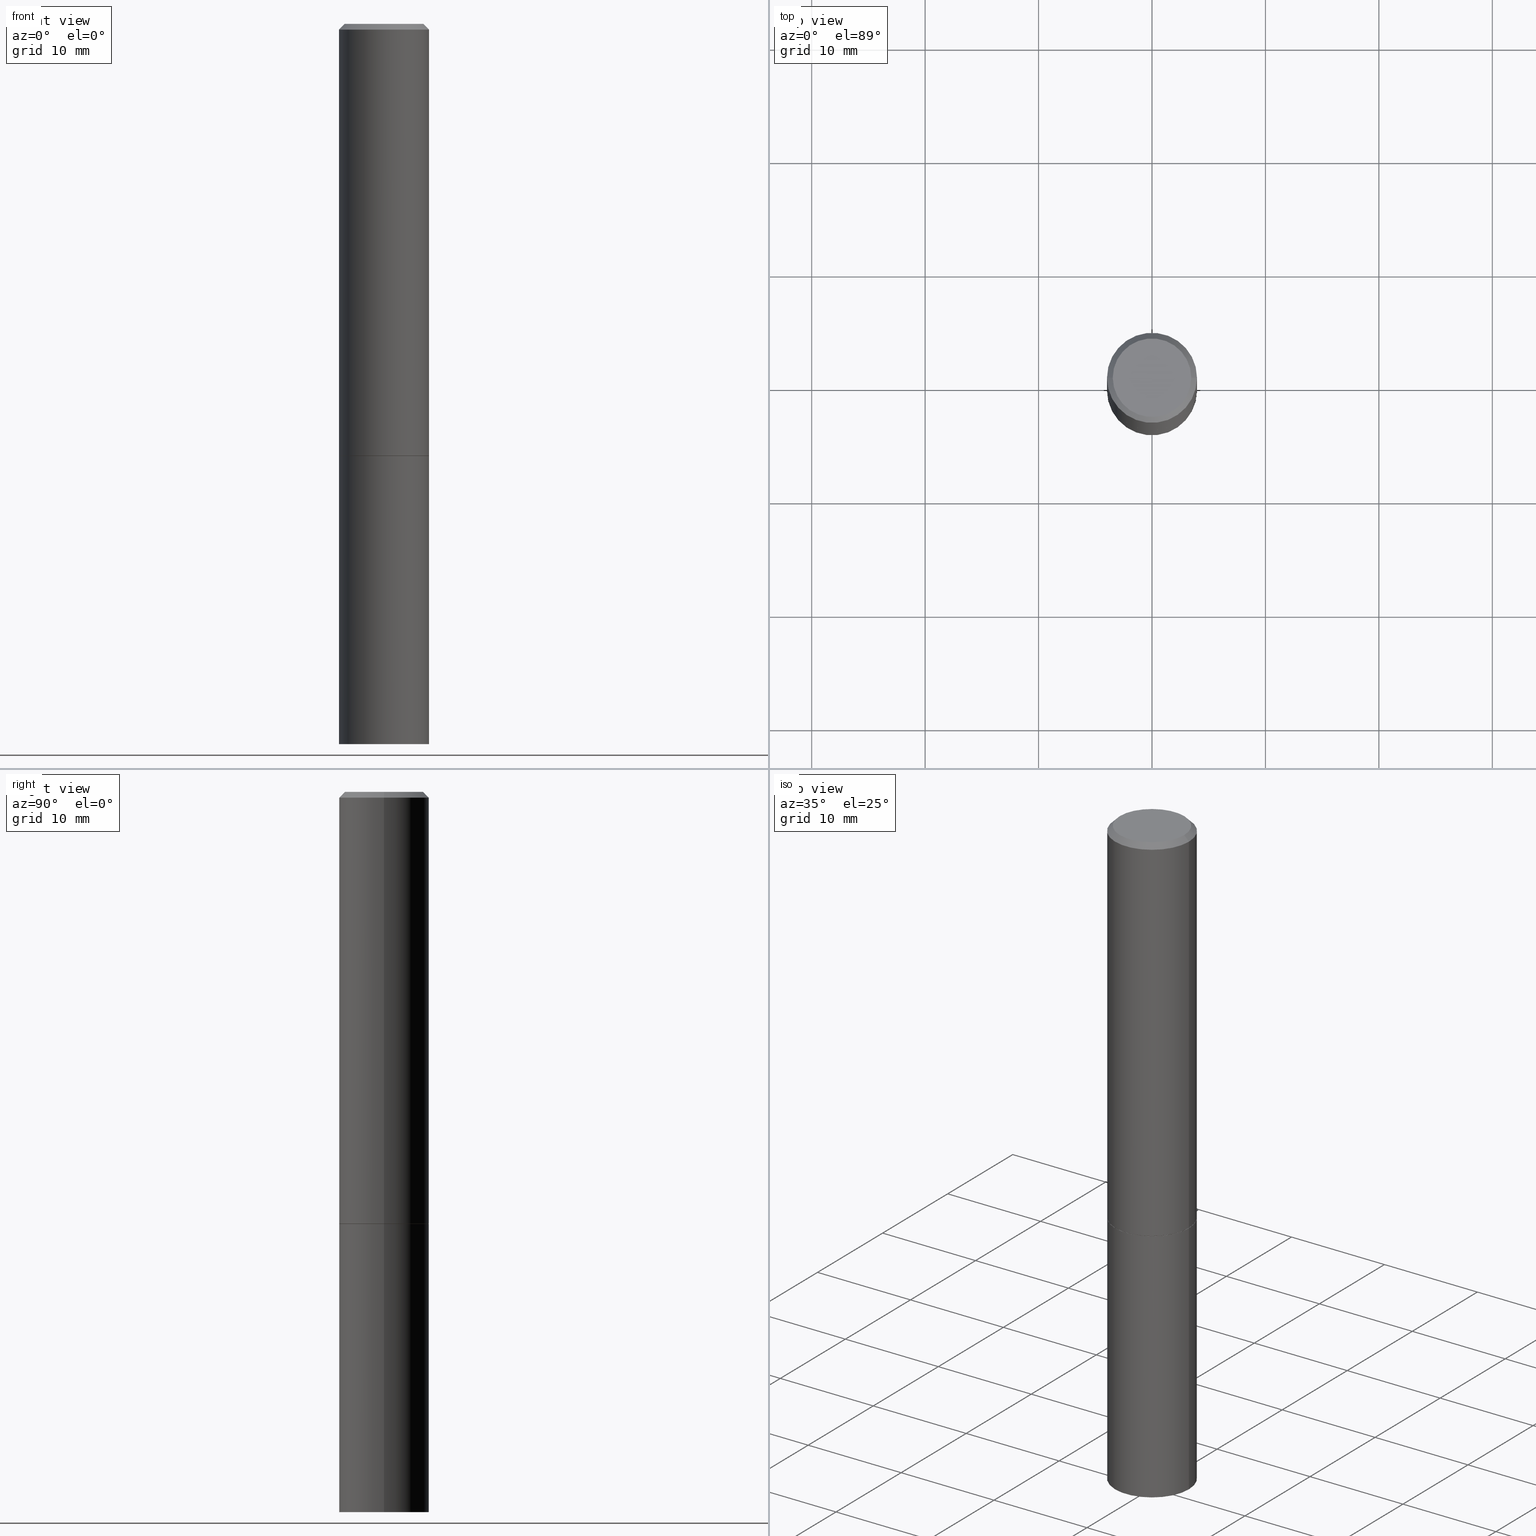
[diagram: canonical four-view strip — front | top / right | iso, engineering-drawing reading convention]
A machine part, canonical four-view strip (front | top / right | iso — engineering-drawing reading convention). The complete STEP part file that produces these views, byte-faithful:
ISO-10303-21;
HEADER;
FILE_DESCRIPTION (( 'STEP AP203' ),
    '1' );
FILE_NAME ('72972.STEP',
    '2024-02-29T05:55:33',
    ( '' ),
    ( '' ),
    'SwSTEP 2.0',
    'SolidWorks 2023',
    '' );
FILE_SCHEMA (( 'CONFIG_CONTROL_DESIGN' ));
ENDSEC;

DATA;
#1 = CARTESIAN_POINT ( 'NONE',  ( 4.890937612370281041E-31, -6.982962677686302702E-17, -0.02000000000000003511 ) ) ;
#2 = CYLINDRICAL_SURFACE ( 'NONE', #218, 0.1562499999999999445 ) ;
#3 = APPROVAL_STATUS ( 'not_yet_approved' ) ;
#4 = CARTESIAN_POINT ( 'NONE',  ( 3.668203209277704895E-29, -5.237222008264718177E-15, -1.500000000000000222 ) ) ;
#5 = CARTESIAN_POINT ( 'NONE',  ( 3.668203209277704895E-29, -5.237222008264718177E-15, -1.500000000000000222 ) ) ;
#6 = PRODUCT_DEFINITION_FORMATION_WITH_SPECIFIED_SOURCE ( 'ANY', '', #315, .NOT_KNOWN. ) ;
#7 = DIRECTION ( 'NONE',  ( -2.445468806185136597E-29, 3.491481338843145583E-15, 1.000000000000000000 ) ) ;
#8 = COORDINATED_UNIVERSAL_TIME_OFFSET ( 5, 0, .BEHIND. ) ;
#9 = CYLINDRICAL_SURFACE ( 'NONE', #215, 0.1562500000000000000 ) ;
#10 = ORIENTED_EDGE ( 'NONE', *, *, #223, .T. ) ;
#11 = PERSON_AND_ORGANIZATION ( #159, #130 ) ;
#12 = CIRCLE ( 'NONE', #102, 0.1362499999999998435 ) ;
#13 = APPROVAL_ROLE ( '' ) ;
#14 = APPLICATION_CONTEXT ( 'configuration controlled 3d designs of mechanical parts and assemblies' ) ;
#15 = DIRECTION ( 'NONE',  ( 2.445468806185136597E-29, -3.491481338843145583E-15, -1.000000000000000000 ) ) ;
#16 = ADVANCED_FACE ( 'NONE', ( #72 ), #362, .T. ) ;
#17 = CARTESIAN_POINT ( 'NONE',  ( 0.1562499999999999445, -1.091087918388478779E-15, 7.619026212181146173E-30 ) ) ;
#18 = EDGE_LOOP ( 'NONE', ( #10, #20 ) ) ;
#19 = DIRECTION ( 'NONE',  ( -2.445468806185136597E-29, 3.491481338843145583E-15, 1.000000000000000000 ) ) ;
#20 = ORIENTED_EDGE ( 'NONE', *, *, #305, .T. ) ;
#21 = CALENDAR_DATE ( 2024, 29, 2 ) ;
#22 = ORIENTED_EDGE ( 'NONE', *, *, #276, .F. ) ;
#23 = VERTEX_POINT ( 'NONE', #46 ) ;
#24 = ORIENTED_EDGE ( 'NONE', *, *, #31, .T. ) ;
#25 = PRODUCT_DEFINITION ( 'UNKNOWN', '', #6, #50 ) ;
#26 = CARTESIAN_POINT ( 'NONE',  ( 1.091087918388515658E-15, 0.1562499999999947820, -1.500000000000000666 ) ) ;
#27 = AXIS2_PLACEMENT_3D ( 'NONE', #1, #15, #309 ) ;
#28 = FACE_OUTER_BOUND ( 'NONE', #18, .T. ) ;
#29 = DIRECTION ( 'NONE',  ( 1.000000000000000000, -6.982962677686266711E-15, 4.876176775795936353E-29 ) ) ;
#30 = CC_DESIGN_PERSON_AND_ORGANIZATION_ASSIGNMENT ( #344, #89, ( #6 ) ) ;
#31 = EDGE_CURVE ( 'NONE', #280, #23, #163, .T. ) ;
#32 = CARTESIAN_POINT ( 'NONE',  ( 3.665757740471519853E-29, -5.233730526925875958E-15, -1.499000000000000110 ) ) ;
#33 = DIMENSIONAL_EXPONENTS ( 1.000000000000000000, 0.000000000000000000, 0.000000000000000000, 0.000000000000000000, 0.000000000000000000, 0.000000000000000000, 0.000000000000000000 ) ;
#34 = AXIS2_PLACEMENT_3D ( 'NONE', #228, #336, #201 ) ;
#35 = PERSON_AND_ORGANIZATION ( #159, #130 ) ;
#36 = ADVANCED_FACE ( 'NONE', ( #103 ), #335, .T. ) ;
#37 = LOCAL_TIME ( 0, 55, 33.00000000000000000, #182 ) ;
#38 = FACE_OUTER_BOUND ( 'NONE', #225, .T. ) ;
#39 = EDGE_CURVE ( 'NONE', #119, #55, #79, .T. ) ;
#40 = EDGE_LOOP ( 'NONE', ( #222, #170, #257, #219 ) ) ;
#41 = APPROVAL_DATE_TIME ( #156, #311 ) ;
#42 = CARTESIAN_POINT ( 'NONE',  ( 3.668203209277704895E-29, -5.237222008264718177E-15, -1.500000000000000222 ) ) ;
#43 = LOCAL_TIME ( 0, 55, 33.00000000000000000, #172 ) ;
#44 = CARTESIAN_POINT ( 'NONE',  ( 3.668203209277704895E-29, -5.237222008264718177E-15, -1.500000000000000222 ) ) ;
#45 = FACE_OUTER_BOUND ( 'NONE', #162, .T. ) ;
#46 = CARTESIAN_POINT ( 'NONE',  ( -0.1562500000000000000, -5.872739653061135414E-15, -1.500000000000000222 ) ) ;
#47 = ORIENTED_EDGE ( 'NONE', *, *, #220, .F. ) ;
#48 = LOCAL_TIME ( 0, 55, 33.00000000000000000, #87 ) ;
#49 = DIRECTION ( 'NONE',  ( -2.445468806185136877E-29, 3.491481338843145188E-15, 1.000000000000000000 ) ) ;
#50 = DESIGN_CONTEXT ( 'detailed design', #66, 'design' ) ;
#51 = CC_DESIGN_PERSON_AND_ORGANIZATION_ASSIGNMENT ( #61, #273, ( #272 ) ) ;
#52 = DIRECTION ( 'NONE',  ( -2.445468806185136597E-29, 3.491481338843145583E-15, 1.000000000000000000 ) ) ;
#53 = EDGE_CURVE ( 'NONE', #119, #280, #64, .T. ) ;
#54 = SECURITY_CLASSIFICATION_LEVEL ( 'unclassified' ) ;
#55 = VERTEX_POINT ( 'NONE', #106 ) ;
#56 = FACE_OUTER_BOUND ( 'NONE', #248, .T. ) ;
#57 = LOCAL_TIME ( 0, 55, 33.00000000000000000, #8 ) ;
#58 = AXIS2_PLACEMENT_3D ( 'NONE', #73, #365, #75 ) ;
#59 = CARTESIAN_POINT ( 'NONE',  ( 4.890937612370281041E-31, -6.982962677686302702E-17, -0.02000000000000003511 ) ) ;
#60 = CIRCLE ( 'NONE', #217, 0.1562500000000000000 ) ;
#61 = PERSON_AND_ORGANIZATION ( #159, #130 ) ;
#62 = VECTOR ( 'NONE', #173, 39.37007874015748143 ) ;
#63 = PERSON_AND_ORGANIZATION ( #159, #130 ) ;
#64 = CIRCLE ( 'NONE', #346, 0.1562500000000000000 ) ;
#65 = DIRECTION ( 'NONE',  ( 1.000000000000000000, 0.000000000000000000, 0.000000000000000000 ) ) ;
#66 = APPLICATION_CONTEXT ( 'configuration controlled 3d designs of mechanical parts and assemblies' ) ;
#67 = EDGE_LOOP ( 'NONE', ( #99, #333, #120, #92 ) ) ;
#68 = VERTEX_POINT ( 'NONE', #230 ) ;
#69 = DIRECTION ( 'NONE',  ( -2.445468806185136597E-29, 3.491481338843145583E-15, 1.000000000000000000 ) ) ;
#70 = ORIENTED_EDGE ( 'NONE', *, *, #179, .F. ) ;
#71 =( GEOMETRIC_REPRESENTATION_CONTEXT ( 3 ) GLOBAL_UNCERTAINTY_ASSIGNED_CONTEXT ( ( #80 ) ) GLOBAL_UNIT_ASSIGNED_CONTEXT ( ( #122, #303, #151 ) ) REPRESENTATION_CONTEXT ( 'NONE', 'WORKASPACE' ) );
#72 = FACE_OUTER_BOUND ( 'NONE', #101, .T. ) ;
#73 = CARTESIAN_POINT ( 'NONE',  ( 1.091087918388540310E-15, 0.1562499999999912570, -2.500000000000000444 ) ) ;
#74 = DIRECTION ( 'NONE',  ( -0.7071067811865232589, 7.493145998870265808E-15, 0.7071067811865715536 ) ) ;
#75 = DIRECTION ( 'NONE',  ( -1.000000000000000000, 6.982962677686265922E-15, -4.876176775795935793E-29 ) ) ;
#76 = AXIS2_PLACEMENT_3D ( 'NONE', #32, #7, #114 ) ;
#77 = DIRECTION ( 'NONE',  ( 1.000000000000000000, -6.982962677686268288E-15, 0.000000000000000000 ) ) ;
#78 = ADVANCED_FACE ( 'NONE', ( #136 ), #200, .T. ) ;
#79 = LINE ( 'NONE', #198, #85 ) ;
#80 = UNCERTAINTY_MEASURE_WITH_UNIT (LENGTH_MEASURE( 1.000000000000000082E-05 ), #122, 'distance_accuracy_value', 'NONE');
#81 = DATE_AND_TIME ( #211, #48 ) ;
#82 = DIRECTION ( 'NONE',  ( 0.7071067811865232589, -2.468850131082003836E-15, 0.7071067811865715536 ) ) ;
#83 = ORIENTED_EDGE ( 'NONE', *, *, #147, .F. ) ;
#84 = DIRECTION ( 'NONE',  ( 1.000000000000000000, -6.982962677686265133E-15, 0.000000000000000000 ) ) ;
#85 = VECTOR ( 'NONE', #49, 39.37007874015748143 ) ;
#86 = EDGE_CURVE ( 'NONE', #280, #119, #138, .T. ) ;
#87 = COORDINATED_UNIVERSAL_TIME_OFFSET ( 5, 0, .BEHIND. ) ;
#88 = DIRECTION ( 'NONE',  ( -2.445468806185136597E-29, 3.491481338843145583E-15, 1.000000000000000000 ) ) ;
#89 = PERSON_AND_ORGANIZATION_ROLE ( 'creator' ) ;
#90 = MANIFOLD_SOLID_BREP ( 'Body-Move/Copy2[2]', #231 ) ;
#91 = MANIFOLD_SOLID_BREP ( 'Body-Move/Copy2[1]', #351 ) ;
#92 = ORIENTED_EDGE ( 'NONE', *, *, #264, .F. ) ;
#93 = ORIENTED_EDGE ( 'NONE', *, *, #174, .F. ) ;
#94 = EDGE_CURVE ( 'NONE', #188, #196, #289, .T. ) ;
#95 = CC_DESIGN_SECURITY_CLASSIFICATION ( #272, ( #6 ) ) ;
#96 = AXIS2_PLACEMENT_3D ( 'NONE', #316, #52, #292 ) ;
#97 = ORIENTED_EDGE ( 'NONE', *, *, #94, .T. ) ;
#98 = FACE_OUTER_BOUND ( 'NONE', #204, .T. ) ;
#99 = ORIENTED_EDGE ( 'NONE', *, *, #205, .T. ) ;
#100 = CARTESIAN_POINT ( 'NONE',  ( -0.1562499999999998335, 1.021258291611615086E-15, -0.02000000000000003511 ) ) ;
#101 = EDGE_LOOP ( 'NONE', ( #22, #306, #190, #184 ) ) ;
#102 = AXIS2_PLACEMENT_3D ( 'NONE', #279, #229, #239 ) ;
#103 = FACE_OUTER_BOUND ( 'NONE', #243, .T. ) ;
#104 = LINE ( 'NONE', #125, #209 ) ;
#105 = DIRECTION ( 'NONE',  ( 1.000000000000000000, -6.982962677686266711E-15, 4.876176775795935232E-29 ) ) ;
#106 = CARTESIAN_POINT ( 'NONE',  ( 0.1562500000000000000, -6.328309926653198139E-15, -1.500000000000000222 ) ) ;
#107 = EDGE_LOOP ( 'NONE', ( #246, #134, #194, #327 ) ) ;
#108 = DIRECTION ( 'NONE',  ( -2.445468806185136597E-29, 3.491481338843145583E-15, 1.000000000000000000 ) ) ;
#109 = CARTESIAN_POINT ( 'NONE',  ( 0.1562500000000000000, -9.819791265496344905E-15, -2.500000000000000000 ) ) ;
#110 = DIRECTION ( 'NONE',  ( -1.000000000000000000, 6.982962677686267499E-15, 0.000000000000000000 ) ) ;
#111 = ADVANCED_FACE ( 'NONE', ( #38 ), #175, .T. ) ;
#112 = APPROVAL_ROLE ( '' ) ;
#113 = APPROVAL_DATE_TIME ( #81, #171 ) ;
#114 = DIRECTION ( 'NONE',  ( 1.000000000000000000, -6.982962677686269077E-15, 0.000000000000000000 ) ) ;
#115 = EDGE_CURVE ( 'NONE', #196, #188, #277, .T. ) ;
#116 = DIRECTION ( 'NONE',  ( -2.445468806185136597E-29, 3.491481338843145583E-15, 1.000000000000000000 ) ) ;
#117 = CALENDAR_DATE ( 2024, 29, 2 ) ;
#118 = CONICAL_SURFACE ( 'NONE', #332, 0.1552499999999999991, 0.7853981633974141952 ) ;
#119 = VERTEX_POINT ( 'NONE', #109 ) ;
#120 = ORIENTED_EDGE ( 'NONE', *, *, #348, .F. ) ;
#121 = DATE_AND_TIME ( #117, #37 ) ;
#122 =( CONVERSION_BASED_UNIT ( 'INCH', #345 ) LENGTH_UNIT ( ) NAMED_UNIT ( #33 ) );
#123 = EDGE_LOOP ( 'NONE', ( #252, #24, #347, #129 ) ) ;
#124 = FACE_OUTER_BOUND ( 'NONE', #123, .T. ) ;
#125 = CARTESIAN_POINT ( 'NONE',  ( -0.1552499999999999991, -4.134104410997162644E-15, -1.500000000000000222 ) ) ;
#126 = DIRECTION ( 'NONE',  ( -2.445468806185136597E-29, 3.491481338843145583E-15, 1.000000000000000000 ) ) ;
#127 = DIRECTION ( 'NONE',  ( 1.000000000000000000, -6.982962677686269077E-15, 0.000000000000000000 ) ) ;
#128 = PERSON_AND_ORGANIZATION ( #159, #130 ) ;
#129 = ORIENTED_EDGE ( 'NONE', *, *, #39, .F. ) ;
#130 = ORGANIZATION ( 'UNSPECIFIED', 'UNSPECIFIED', '' ) ;
#131 = CIRCLE ( 'NONE', #187, 0.1552499999999999991 ) ;
#132 = APPROVAL ( #250, 'UNSPECIFIED' ) ;
#133 = ORIENTED_EDGE ( 'NONE', *, *, #115, .T. ) ;
#134 = ORIENTED_EDGE ( 'NONE', *, *, #86, .T. ) ;
#135 = FACE_OUTER_BOUND ( 'NONE', #40, .T. ) ;
#136 = FACE_OUTER_BOUND ( 'NONE', #67, .T. ) ;
#137 = DATE_TIME_ROLE ( 'classification_date' ) ;
#138 = CIRCLE ( 'NONE', #221, 0.1562500000000000000 ) ;
#139 = DIRECTION ( 'NONE',  ( 2.438088387897960049E-29, -3.491481338843145188E-15, -1.000000000000000000 ) ) ;
#140 = CIRCLE ( 'NONE', #297, 0.1562500000000000000 ) ;
#141 = CARTESIAN_POINT ( 'NONE',  ( -0.1562500000000000000, -1.541557052226212102E-15, -1.499000000000000110 ) ) ;
#142 = ADVANCED_FACE ( 'NONE', ( #45 ), #118, .T. ) ;
#143 = PLANE ( 'NONE',  #181 ) ;
#144 = CARTESIAN_POINT ( 'NONE',  ( 0.000000000000000000, 0.000000000000000000, 0.000000000000000000 ) ) ;
#145 = APPROVAL_PERSON_ORGANIZATION ( #11, #132, #13 ) ;
#146 = CARTESIAN_POINT ( 'NONE',  ( -1.043851414335219820E-46, 1.490343170380447200E-32, 4.268512490100411279E-18 ) ) ;
#147 = EDGE_CURVE ( 'NONE', #68, #188, #343, .T. ) ;
#148 = APPROVAL_STATUS ( 'not_yet_approved' ) ;
#149 = APPROVAL_DATE_TIME ( #121, #132 ) ;
#150 = PRODUCT_RELATED_PRODUCT_CATEGORY ( 'detail', '', ( #315 ) ) ;
#151 =( NAMED_UNIT ( * ) SI_UNIT ( $, .STERADIAN. ) SOLID_ANGLE_UNIT ( ) );
#152 = AXIS2_PLACEMENT_3D ( 'NONE', #323, #153, #258 ) ;
#153 = DIRECTION ( 'NONE',  ( -2.445468806185136597E-29, 3.491481338843145583E-15, 1.000000000000000000 ) ) ;
#154 = MECHANICAL_CONTEXT ( 'NONE', #14, 'mechanical' ) ;
#155 = CARTESIAN_POINT ( 'NONE',  ( 3.668203209277704895E-29, -5.237222008264718177E-15, -1.500000000000000222 ) ) ;
#156 = DATE_AND_TIME ( #330, #57 ) ;
#157 = EDGE_LOOP ( 'NONE', ( #260, #70 ) ) ;
#158 = DIRECTION ( 'NONE',  ( 1.000000000000000000, -6.982962677686268288E-15, 0.000000000000000000 ) ) ;
#159 = PERSON ( 'UNSPECIFIED', 'UNSPECIFIED', 'UNSPECIFIED', ('UNSPECIFIED'), ('UNSPECIFIED'), ('UNSPECIFIED') ) ;
#160 = VECTOR ( 'NONE', #361, 39.37007874015748143 ) ;
#161 = CC_DESIGN_PERSON_AND_ORGANIZATION_ASSIGNMENT ( #63, #301, ( #315 ) ) ;
#162 = EDGE_LOOP ( 'NONE', ( #328, #337, #261, #308 ) ) ;
#163 = LINE ( 'NONE', #287, #160 ) ;
#164 = EDGE_CURVE ( 'NONE', #352, #68, #274, .T. ) ;
#165 = VERTEX_POINT ( 'NONE', #180 ) ;
#166 = AXIS2_PLACEMENT_3D ( 'NONE', #349, #216, #65 ) ;
#167 = CARTESIAN_POINT ( 'NONE',  ( 6.113672015462842613E-29, -8.728703347107864943E-15, -2.500000000000000000 ) ) ;
#168 = DIRECTION ( 'NONE',  ( 1.000000000000000000, -6.982962677686268288E-15, 0.000000000000000000 ) ) ;
#169 = CARTESIAN_POINT ( 'NONE',  ( 3.665757740471519853E-29, -5.233730526925875958E-15, -1.499000000000000110 ) ) ;
#170 = ORIENTED_EDGE ( 'NONE', *, *, #276, .T. ) ;
#171 = APPROVAL ( #3, 'UNSPECIFIED' ) ;
#172 = COORDINATED_UNIVERSAL_TIME_OFFSET ( 5, 0, .BEHIND. ) ;
#173 = DIRECTION ( 'NONE',  ( -2.445468806185136877E-29, 3.491481338843145188E-15, 1.000000000000000000 ) ) ;
#174 = EDGE_CURVE ( 'NONE', #68, #352, #12, .T. ) ;
#175 = CONICAL_SURFACE ( 'NONE', #27, 0.1562499999999998335, 0.7853981633974471688 ) ;
#176 = PERSON_AND_ORGANIZATION ( #159, #130 ) ;
#177 = FACE_OUTER_BOUND ( 'NONE', #107, .T. ) ;
#178 = DIRECTION ( 'NONE',  ( -2.438088387897960049E-29, 3.491481338843145188E-15, 1.000000000000000000 ) ) ;
#179 = EDGE_CURVE ( 'NONE', #165, #226, #360, .T. ) ;
#180 = CARTESIAN_POINT ( 'NONE',  ( -0.1552499999999999991, -4.128805956648940242E-15, -1.500000000000000222 ) ) ;
#181 = AXIS2_PLACEMENT_3D ( 'NONE', #4, #178, #300 ) ;
#182 = COORDINATED_UNIVERSAL_TIME_OFFSET ( 5, 0, .BEHIND. ) ;
#183 = APPLICATION_PROTOCOL_DEFINITION ( 'international standard', 'config_control_design', 1994, #66 ) ;
#184 = ORIENTED_EDGE ( 'NONE', *, *, #94, .F. ) ;
#185 = EDGE_CURVE ( 'NONE', #165, #314, #104, .T. ) ;
#186 = DIRECTION ( 'NONE',  ( 1.000000000000000000, -6.982962677686266711E-15, 4.876176775795936353E-29 ) ) ;
#187 = AXIS2_PLACEMENT_3D ( 'NONE', #42, #19, #158 ) ;
#188 = VERTEX_POINT ( 'NONE', #100 ) ;
#189 = DIRECTION ( 'NONE',  ( -2.445468806185136597E-29, 3.491481338843145583E-15, 1.000000000000000000 ) ) ;
#190 = ORIENTED_EDGE ( 'NONE', *, *, #212, .T. ) ;
#191 = ADVANCED_FACE ( 'NONE', ( #98 ), #286, .F. ) ;
#192 = DIRECTION ( 'NONE',  ( 0.7071067811865466846, -7.319954787623252890E-15, -0.7071067811865483499 ) ) ;
#193 = AXIS2_PLACEMENT_3D ( 'NONE', #236, #339, #29 ) ;
#194 = ORIENTED_EDGE ( 'NONE', *, *, #39, .T. ) ;
#195 = PERSON_AND_ORGANIZATION_ROLE ( 'creator' ) ;
#196 = VERTEX_POINT ( 'NONE', #281 ) ;
#197 = ORIENTED_EDGE ( 'NONE', *, *, #220, .T. ) ;
#198 = CARTESIAN_POINT ( 'NONE',  ( 0.1562500000000000000, -1.091087918388479174E-15, 7.619026212181150377E-30 ) ) ;
#199 = LOCAL_TIME ( 0, 55, 33.00000000000000000, #255 ) ;
#200 = CONICAL_SURFACE ( 'NONE', #96, 0.1552499999999999991, 0.7853981633974141952 ) ;
#201 = DIRECTION ( 'NONE',  ( -1.000000000000000000, 6.982962677686265922E-15, -4.876176775795935793E-29 ) ) ;
#202 = DIRECTION ( 'NONE',  ( 1.000000000000000000, -6.982962677686269077E-15, 0.000000000000000000 ) ) ;
#203 = LINE ( 'NONE', #317, #62 ) ;
#204 = EDGE_LOOP ( 'NONE', ( #350, #290 ) ) ;
#205 = EDGE_CURVE ( 'NONE', #226, #165, #131, .T. ) ;
#206 = AXIS2_PLACEMENT_3D ( 'NONE', #338, #108, #207 ) ;
#207 = DIRECTION ( 'NONE',  ( 1.000000000000000000, -6.982962677686269077E-15, 0.000000000000000000 ) ) ;
#208 = APPROVAL_PERSON_ORGANIZATION ( #35, #311, #275 ) ;
#209 = VECTOR ( 'NONE', #74, 39.37007874015748854 ) ;
#210 = CARTESIAN_POINT ( 'NONE',  ( 0.1552499999999999991, -6.321326963975512125E-15, -1.500000000000000222 ) ) ;
#211 = CALENDAR_DATE ( 2024, 29, 2 ) ;
#212 = EDGE_CURVE ( 'NONE', #310, #196, #253, .T. ) ;
#213 = CALENDAR_DATE ( 2024, 29, 2 ) ;
#214 =( LENGTH_UNIT ( ) NAMED_UNIT ( * ) SI_UNIT ( $, .METRE. ) );
#215 = AXIS2_PLACEMENT_3D ( 'NONE', #244, #116, #186 ) ;
#216 = DIRECTION ( 'NONE',  ( 0.000000000000000000, 0.000000000000000000, 1.000000000000000000 ) ) ;
#217 = AXIS2_PLACEMENT_3D ( 'NONE', #169, #238, #364 ) ;
#218 = AXIS2_PLACEMENT_3D ( 'NONE', #144, #88, #232 ) ;
#219 = ORIENTED_EDGE ( 'NONE', *, *, #212, .F. ) ;
#220 = EDGE_CURVE ( 'NONE', #352, #196, #224, .T. ) ;
#221 = AXIS2_PLACEMENT_3D ( 'NONE', #266, #318, #127 ) ;
#222 = ORIENTED_EDGE ( 'NONE', *, *, #348, .T. ) ;
#223 = EDGE_CURVE ( 'NONE', #55, #23, #140, .T. ) ;
#224 = LINE ( 'NONE', #329, #251 ) ;
#225 = EDGE_LOOP ( 'NONE', ( #47, #93, #325, #97 ) ) ;
#226 = VERTEX_POINT ( 'NONE', #265 ) ;
#227 = ORIENTED_EDGE ( 'NONE', *, *, #53, .F. ) ;
#228 = CARTESIAN_POINT ( 'NONE',  ( 9.514286648347525771E-16, 0.1362499999999998435, -4.735800761723278502E-16 ) ) ;
#229 = DIRECTION ( 'NONE',  ( -2.445468806185136597E-29, 3.491481338843145583E-15, 1.000000000000000000 ) ) ;
#230 = CARTESIAN_POINT ( 'NONE',  ( -0.1362499999999998435, 9.863434782231838318E-16, 4.268512490093635087E-18 ) ) ;
#231 = CLOSED_SHELL ( 'NONE', ( #78, #233, #320, #111, #16, #142, #326, #191 ) ) ;
#232 = DIRECTION ( 'NONE',  ( 1.000000000000000000, -6.982962677686266711E-15, 4.876176775795935232E-29 ) ) ;
#233 = ADVANCED_FACE ( 'NONE', ( #135 ), #2, .T. ) ;
#234 = DIRECTION ( 'NONE',  ( -2.445468806185136597E-29, 3.491481338843145583E-15, 1.000000000000000000 ) ) ;
#235 = DIRECTION ( 'NONE',  ( -2.445468806185136597E-29, 3.491481338843145583E-15, 1.000000000000000000 ) ) ;
#236 = CARTESIAN_POINT ( 'NONE',  ( 0.000000000000000000, 0.000000000000000000, 0.000000000000000000 ) ) ;
#237 = VECTOR ( 'NONE', #355, 39.37007874015748143 ) ;
#238 = DIRECTION ( 'NONE',  ( -2.445468806185136597E-29, 3.491481338843145583E-15, 1.000000000000000000 ) ) ;
#239 = DIRECTION ( 'NONE',  ( 1.000000000000000000, -6.982962677686266711E-15, 4.876388394912424373E-29 ) ) ;
#240 = CARTESIAN_POINT ( 'NONE',  ( 0.1362499999999998435, -1.038262645562516941E-15, 4.268512490107368508E-18 ) ) ;
#241 = PRODUCT_DEFINITION_SHAPE ( 'NONE', 'NONE',  #25 ) ;
#242 = APPROVAL_PERSON_ORGANIZATION ( #176, #171, #112 ) ;
#243 = EDGE_LOOP ( 'NONE', ( #227, #363 ) ) ;
#244 = CARTESIAN_POINT ( 'NONE',  ( 0.000000000000000000, 0.000000000000000000, 0.000000000000000000 ) ) ;
#245 = ADVANCED_BREP_SHAPE_REPRESENTATION ( '72972', ( #91, #90, #166 ), #71 ) ;
#246 = ORIENTED_EDGE ( 'NONE', *, *, #31, .F. ) ;
#247 = SHAPE_DEFINITION_REPRESENTATION ( #241, #245 ) ;
#248 = EDGE_LOOP ( 'NONE', ( #334, #197, #133, #83 ) ) ;
#249 = EDGE_CURVE ( 'NONE', #314, #310, #60, .T. ) ;
#250 = APPROVAL_STATUS ( 'not_yet_approved' ) ;
#251 = VECTOR ( 'NONE', #192, 39.37007874015748143 ) ;
#252 = ORIENTED_EDGE ( 'NONE', *, *, #53, .T. ) ;
#253 = LINE ( 'NONE', #17, #237 ) ;
#254 = CARTESIAN_POINT ( 'NONE',  ( 4.890937612370281041E-31, -6.982962677686302702E-17, -0.02000000000000003511 ) ) ;
#255 = COORDINATED_UNIVERSAL_TIME_OFFSET ( 5, 0, .BEHIND. ) ;
#256 = AXIS2_PLACEMENT_3D ( 'NONE', #359, #234, #105 ) ;
#257 = ORIENTED_EDGE ( 'NONE', *, *, #115, .F. ) ;
#258 = DIRECTION ( 'NONE',  ( 1.000000000000000000, -6.982962677686265133E-15, 0.000000000000000000 ) ) ;
#259 = DATE_AND_TIME ( #21, #199 ) ;
#260 = ORIENTED_EDGE ( 'NONE', *, *, #205, .F. ) ;
#261 = ORIENTED_EDGE ( 'NONE', *, *, #264, .T. ) ;
#262 = CC_DESIGN_PERSON_AND_ORGANIZATION_ASSIGNMENT ( #128, #195, ( #25 ) ) ;
#263 = CIRCLE ( 'NONE', #206, 0.1562500000000000000 ) ;
#264 = EDGE_CURVE ( 'NONE', #226, #310, #342, .T. ) ;
#265 = CARTESIAN_POINT ( 'NONE',  ( 0.1552499999999999991, -6.321326963975512125E-15, -1.500000000000000222 ) ) ;
#266 = CARTESIAN_POINT ( 'NONE',  ( 6.113672015462842613E-29, -8.728703347107864943E-15, -2.500000000000000000 ) ) ;
#267 = CIRCLE ( 'NONE', #76, 0.1562500000000000000 ) ;
#268 = DIRECTION ( 'NONE',  ( -1.000000000000000000, 6.982962677686265922E-15, -4.876176775795935793E-29 ) ) ;
#269 = DIRECTION ( 'NONE',  ( 2.445468806185136597E-29, -3.491481338843145583E-15, -1.000000000000000000 ) ) ;
#270 = DATE_TIME_ROLE ( 'creation_date' ) ;
#271 = FACE_OUTER_BOUND ( 'NONE', #157, .T. ) ;
#272 = SECURITY_CLASSIFICATION ( '', '', #54 ) ;
#273 = PERSON_AND_ORGANIZATION_ROLE ( 'classification_officer' ) ;
#274 = CIRCLE ( 'NONE', #313, 0.1362499999999998435 ) ;
#275 = APPROVAL_ROLE ( '' ) ;
#276 = EDGE_CURVE ( 'NONE', #314, #188, #203, .T. ) ;
#277 = CIRCLE ( 'NONE', #152, 0.1562499999999998335 ) ;
#278 = APPLICATION_PROTOCOL_DEFINITION ( 'international standard', 'config_control_design', 1994, #14 ) ;
#279 = CARTESIAN_POINT ( 'NONE',  ( -1.043851414335219820E-46, 1.490343170380447200E-32, 4.268512490100411279E-18 ) ) ;
#280 = VERTEX_POINT ( 'NONE', #291 ) ;
#281 = CARTESIAN_POINT ( 'NONE',  ( 0.1562499999999998335, -1.141782438928663724E-15, -0.02000000000000003511 ) ) ;
#282 = DIRECTION ( 'NONE',  ( -2.445468806185136597E-29, 3.491481338843145583E-15, 1.000000000000000000 ) ) ;
#283 = DIRECTION ( 'NONE',  ( -2.445468806185136597E-29, 3.491481338843145583E-15, 1.000000000000000000 ) ) ;
#284 = DIRECTION ( 'NONE',  ( -0.7071067811865466846, 2.468850131082247989E-15, -0.7071067811865483499 ) ) ;
#285 = AXIS2_PLACEMENT_3D ( 'NONE', #26, #139, #268 ) ;
#286 = PLANE ( 'NONE',  #34 ) ;
#287 = CARTESIAN_POINT ( 'NONE',  ( -0.1562500000000000000, 1.110223024625156540E-15, -7.685836078523291160E-30 ) ) ;
#288 = AXIS2_PLACEMENT_3D ( 'NONE', #59, #269, #110 ) ;
#289 = CIRCLE ( 'NONE', #296, 0.1562499999999998335 ) ;
#290 = ORIENTED_EDGE ( 'NONE', *, *, #164, .T. ) ;
#291 = CARTESIAN_POINT ( 'NONE',  ( -0.1562500000000000000, -5.872739653061135414E-15, -2.500000000000000000 ) ) ;
#292 = DIRECTION ( 'NONE',  ( 1.000000000000000000, -6.982962677686268288E-15, 0.000000000000000000 ) ) ;
#293 = DATE_AND_TIME ( #213, #43 ) ;
#294 = PLANE ( 'NONE',  #285 ) ;
#295 = CC_DESIGN_APPROVAL ( #171, ( #6 ) ) ;
#296 = AXIS2_PLACEMENT_3D ( 'NONE', #254, #235, #84 ) ;
#297 = AXIS2_PLACEMENT_3D ( 'NONE', #44, #126, #331 ) ;
#298 = CYLINDRICAL_SURFACE ( 'NONE', #193, 0.1562500000000000000 ) ;
#299 = ADVANCED_FACE ( 'NONE', ( #28 ), #294, .F. ) ;
#300 = DIRECTION ( 'NONE',  ( 1.000000000000000000, -6.982962677686265922E-15, 4.876176775795935793E-29 ) ) ;
#301 = PERSON_AND_ORGANIZATION_ROLE ( 'design_owner' ) ;
#302 = AXIS2_PLACEMENT_3D ( 'NONE', #155, #69, #77 ) ;
#303 =( NAMED_UNIT ( * ) PLANE_ANGLE_UNIT ( ) SI_UNIT ( $, .RADIAN. ) );
#304 = CC_DESIGN_PERSON_AND_ORGANIZATION_ASSIGNMENT ( #366, #321, ( #6 ) ) ;
#305 = EDGE_CURVE ( 'NONE', #23, #55, #263, .T. ) ;
#306 = ORIENTED_EDGE ( 'NONE', *, *, #249, .T. ) ;
#307 = CC_DESIGN_APPROVAL ( #311, ( #25 ) ) ;
#308 = ORIENTED_EDGE ( 'NONE', *, *, #249, .F. ) ;
#309 = DIRECTION ( 'NONE',  ( -1.000000000000000000, 6.982962677686267499E-15, 0.000000000000000000 ) ) ;
#310 = VERTEX_POINT ( 'NONE', #319 ) ;
#311 = APPROVAL ( #148, 'UNSPECIFIED' ) ;
#312 = DIRECTION ( 'NONE',  ( 1.000000000000000000, -6.982962677686266711E-15, 4.876388394912424373E-29 ) ) ;
#313 = AXIS2_PLACEMENT_3D ( 'NONE', #146, #189, #312 ) ;
#314 = VERTEX_POINT ( 'NONE', #141 ) ;
#315 = PRODUCT ( '72972', '72972', '', ( #154 ) ) ;
#316 = CARTESIAN_POINT ( 'NONE',  ( 3.668203209277704895E-29, -5.237222008264718177E-15, -1.500000000000000222 ) ) ;
#317 = CARTESIAN_POINT ( 'NONE',  ( -0.1562499999999999445, 1.110223024625156146E-15, -7.685836078523286956E-30 ) ) ;
#318 = DIRECTION ( 'NONE',  ( -2.445468806185136597E-29, 3.491481338843145583E-15, 1.000000000000000000 ) ) ;
#319 = CARTESIAN_POINT ( 'NONE',  ( 0.1562500000000000000, -6.324818445314355132E-15, -1.499000000000000110 ) ) ;
#320 = ADVANCED_FACE ( 'NONE', ( #56 ), #358, .T. ) ;
#321 = PERSON_AND_ORGANIZATION_ROLE ( 'design_supplier' ) ;
#322 = ADVANCED_FACE ( 'NONE', ( #177 ), #298, .T. ) ;
#323 = CARTESIAN_POINT ( 'NONE',  ( 4.890937612370281041E-31, -6.982962677686302702E-17, -0.02000000000000003511 ) ) ;
#324 = CC_DESIGN_DATE_AND_TIME_ASSIGNMENT ( #259, #270, ( #25 ) ) ;
#325 = ORIENTED_EDGE ( 'NONE', *, *, #147, .T. ) ;
#326 = ADVANCED_FACE ( 'NONE', ( #271 ), #143, .F. ) ;
#327 = ORIENTED_EDGE ( 'NONE', *, *, #305, .F. ) ;
#328 = ORIENTED_EDGE ( 'NONE', *, *, #185, .F. ) ;
#329 = CARTESIAN_POINT ( 'NONE',  ( 0.1562499999999998335, -1.141782438928663724E-15, -0.02000000000000003511 ) ) ;
#330 = CALENDAR_DATE ( 2024, 29, 2 ) ;
#331 = DIRECTION ( 'NONE',  ( 1.000000000000000000, -6.982962677686269077E-15, 0.000000000000000000 ) ) ;
#332 = AXIS2_PLACEMENT_3D ( 'NONE', #5, #282, #168 ) ;
#333 = ORIENTED_EDGE ( 'NONE', *, *, #185, .T. ) ;
#334 = ORIENTED_EDGE ( 'NONE', *, *, #164, .F. ) ;
#335 = PLANE ( 'NONE',  #58 ) ;
#336 = DIRECTION ( 'NONE',  ( 2.438088387897960049E-29, -3.491481338843145188E-15, -1.000000000000000000 ) ) ;
#337 = ORIENTED_EDGE ( 'NONE', *, *, #179, .T. ) ;
#338 = CARTESIAN_POINT ( 'NONE',  ( 3.668203209277704895E-29, -5.237222008264718177E-15, -1.500000000000000222 ) ) ;
#339 = DIRECTION ( 'NONE',  ( -2.445468806185136597E-29, 3.491481338843145583E-15, 1.000000000000000000 ) ) ;
#340 = CC_DESIGN_APPROVAL ( #132, ( #272 ) ) ;
#341 = VECTOR ( 'NONE', #284, 39.37007874015748143 ) ;
#342 = LINE ( 'NONE', #210, #356 ) ;
#343 = LINE ( 'NONE', #357, #341 ) ;
#344 = PERSON_AND_ORGANIZATION ( #159, #130 ) ;
#345 = LENGTH_MEASURE_WITH_UNIT ( LENGTH_MEASURE( 0.02539999999999999897 ), #214 );
#346 = AXIS2_PLACEMENT_3D ( 'NONE', #167, #283, #202 ) ;
#347 = ORIENTED_EDGE ( 'NONE', *, *, #223, .F. ) ;
#348 = EDGE_CURVE ( 'NONE', #310, #314, #267, .T. ) ;
#349 = CARTESIAN_POINT ( 'NONE',  ( 0.000000000000000000, 0.000000000000000000, 0.000000000000000000 ) ) ;
#350 = ORIENTED_EDGE ( 'NONE', *, *, #174, .T. ) ;
#351 = CLOSED_SHELL ( 'NONE', ( #354, #36, #299, #322 ) ) ;
#352 = VERTEX_POINT ( 'NONE', #240 ) ;
#353 = CC_DESIGN_DATE_AND_TIME_ASSIGNMENT ( #293, #137, ( #272 ) ) ;
#354 = ADVANCED_FACE ( 'NONE', ( #124 ), #9, .T. ) ;
#355 = DIRECTION ( 'NONE',  ( -2.445468806185136877E-29, 3.491481338843145188E-15, 1.000000000000000000 ) ) ;
#356 = VECTOR ( 'NONE', #82, 39.37007874015748854 ) ;
#357 = CARTESIAN_POINT ( 'NONE',  ( -0.1562499999999998335, 1.021258291611615086E-15, -0.02000000000000003511 ) ) ;
#358 = CONICAL_SURFACE ( 'NONE', #288, 0.1562499999999998335, 0.7853981633974471688 ) ;
#359 = CARTESIAN_POINT ( 'NONE',  ( 0.000000000000000000, 0.000000000000000000, 0.000000000000000000 ) ) ;
#360 = CIRCLE ( 'NONE', #302, 0.1552499999999999991 ) ;
#361 = DIRECTION ( 'NONE',  ( -2.445468806185136877E-29, 3.491481338843145188E-15, 1.000000000000000000 ) ) ;
#362 = CYLINDRICAL_SURFACE ( 'NONE', #256, 0.1562499999999999445 ) ;
#363 = ORIENTED_EDGE ( 'NONE', *, *, #86, .F. ) ;
#364 = DIRECTION ( 'NONE',  ( 1.000000000000000000, -6.982962677686269077E-15, 0.000000000000000000 ) ) ;
#365 = DIRECTION ( 'NONE',  ( 2.438088387897960049E-29, -3.491481338843145188E-15, -1.000000000000000000 ) ) ;
#366 = PERSON_AND_ORGANIZATION ( #159, #130 ) ;
ENDSEC;
END-ISO-10303-21;
